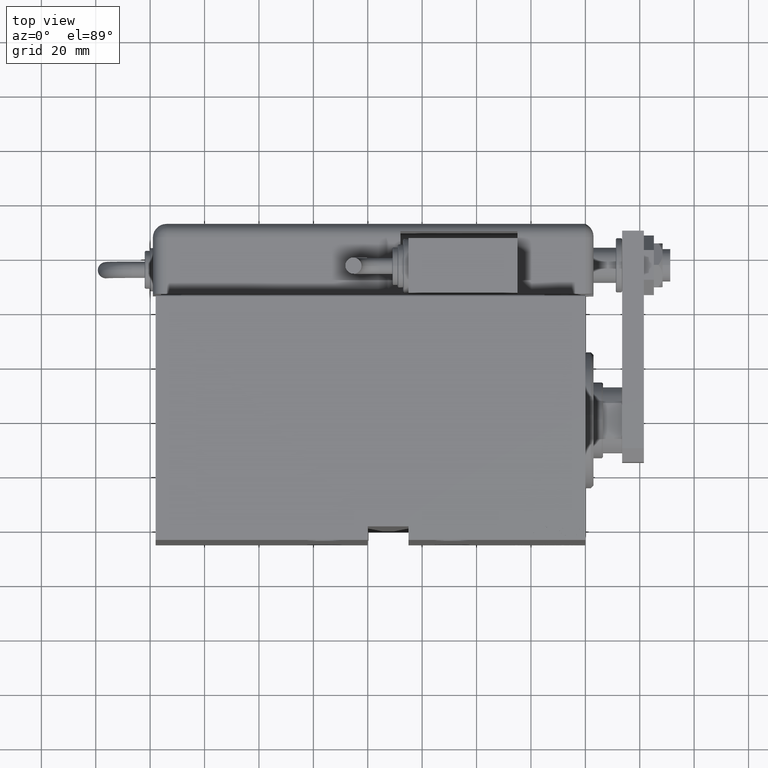
[diagram: clean part render]
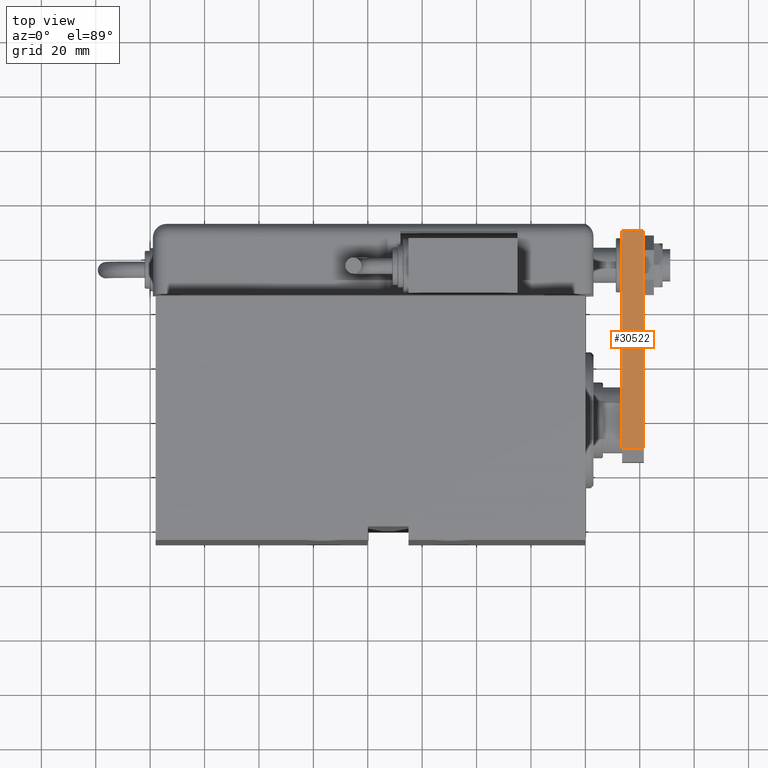
[diagram: same view with one face highlighted and labeled with its STEP entity id]
A machine part, top view. The second image highlights one B-rep face of the part: STEP entity #30522.
In plain terms, the highlighted planar face has unit normal (-0, -0, -1).
Its self-contained STEP definition (entity closure, byte-faithful):
#3852 = EDGE_CURVE ( 'NONE', #49056, #43029, #34696, .T. ) ;
#5128 = EDGE_CURVE ( 'NONE', #20696, #36666, #54478, .T. ) ;
#14441 = LINE ( 'NONE', #52336, #38985 ) ;
#15220 = CARTESIAN_POINT ( 'NONE',  ( 15.00000000000000888, 9.629649721936179265E-32, 8.000000000000000000 ) ) ;
#17175 = DIRECTION ( 'NONE',  ( 8.163404592832032733E-17, -1.000000000000000000, 0.000000000000000000 ) ) ;
#17386 = CARTESIAN_POINT ( 'NONE',  ( 15.00000000000000178, 85.00000000000000000, 8.000000000000000000 ) ) ;
#20404 = VECTOR ( 'NONE', #30427, 1000.000000000000000 ) ;
#20696 = VERTEX_POINT ( 'NONE', #17386 ) ;
#23113 = ORIENTED_EDGE ( 'NONE', *, *, #5128, .F. ) ;
#23616 = VECTOR ( 'NONE', #42347, 1000.000000000000000 ) ;
#24480 = DIRECTION ( 'NONE',  ( 0.000000000000000000, 0.000000000000000000, -1.000000000000000000 ) ) ;
#25399 = DIRECTION ( 'NONE',  ( -1.000000000000000000, -8.163404592832032733E-17, 0.000000000000000000 ) ) ;
#29785 = CARTESIAN_POINT ( 'NONE',  ( 15.00000000000000888, 4.999999999999990230, 8.000000000000000000 ) ) ;
#29946 = EDGE_LOOP ( 'NONE', ( #54768, #44033, #49600, #23113 ) ) ;
#30427 = DIRECTION ( 'NONE',  ( -0.000000000000000000, -0.000000000000000000, -1.000000000000000000 ) ) ;
#30522 = ADVANCED_FACE ( 'NONE', ( #40385 ), #43754, .F. ) ;
#33122 = DIRECTION ( 'NONE',  ( -8.163404592832032733E-17, 1.000000000000000000, 0.000000000000000000 ) ) ;
#34434 = CARTESIAN_POINT ( 'NONE',  ( 15.00000000000000888, 9.629649721936179265E-32, 8.000000000000000000 ) ) ;
#34696 = LINE ( 'NONE', #47635, #42468 ) ;
#36666 = VERTEX_POINT ( 'NONE', #53669 ) ;
#38985 = VECTOR ( 'NONE', #33122, 1000.000000000000000 ) ;
#40385 = FACE_OUTER_BOUND ( 'NONE', #29946, .T. ) ;
#42347 = DIRECTION ( 'NONE',  ( -8.163404592832032733E-17, 1.000000000000000000, 0.000000000000000000 ) ) ;
#42468 = VECTOR ( 'NONE', #24480, 1000.000000000000000 ) ;
#42927 = LINE ( 'NONE', #15220, #23616 ) ;
#43029 = VERTEX_POINT ( 'NONE', #52201 ) ;
#43545 = EDGE_CURVE ( 'NONE', #43029, #36666, #14441, .T. ) ;
#43754 = PLANE ( 'NONE',  #54728 ) ;
#44033 = ORIENTED_EDGE ( 'NONE', *, *, #3852, .T. ) ;
#47085 = EDGE_CURVE ( 'NONE', #49056, #20696, #42927, .T. ) ;
#47635 = CARTESIAN_POINT ( 'NONE',  ( 15.00000000000000888, 4.999999999999990230, 8.000000000000000000 ) ) ;
#49056 = VERTEX_POINT ( 'NONE', #29785 ) ;
#49600 = ORIENTED_EDGE ( 'NONE', *, *, #43545, .T. ) ;
#52201 = CARTESIAN_POINT ( 'NONE',  ( 15.00000000000000888, 4.999999999999990230, 0.000000000000000000 ) ) ;
#52336 = CARTESIAN_POINT ( 'NONE',  ( 15.00000000000000888, 9.629649721936179265E-32, 0.000000000000000000 ) ) ;
#53669 = CARTESIAN_POINT ( 'NONE',  ( 15.00000000000000178, 85.00000000000000000, 0.000000000000000000 ) ) ;
#54478 = LINE ( 'NONE', #58978, #20404 ) ;
#54728 = AXIS2_PLACEMENT_3D ( 'NONE', #34434, #25399, #17175 ) ;
#54768 = ORIENTED_EDGE ( 'NONE', *, *, #47085, .F. ) ;
#58978 = CARTESIAN_POINT ( 'NONE',  ( 15.00000000000000178, 85.00000000000000000, 8.000000000000000000 ) ) ;